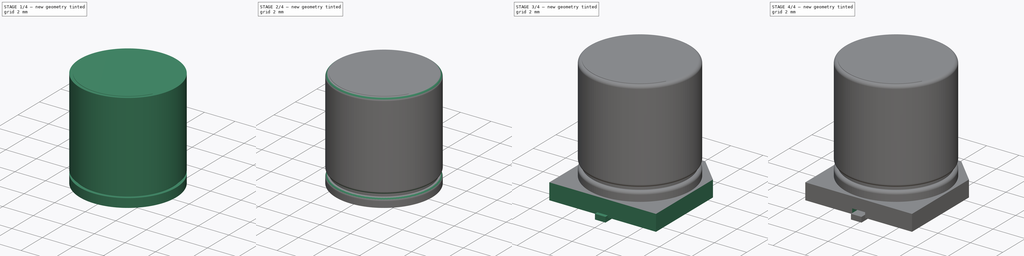
[diagram: build sequence overview — one tinted view per stage of 4, left to right]
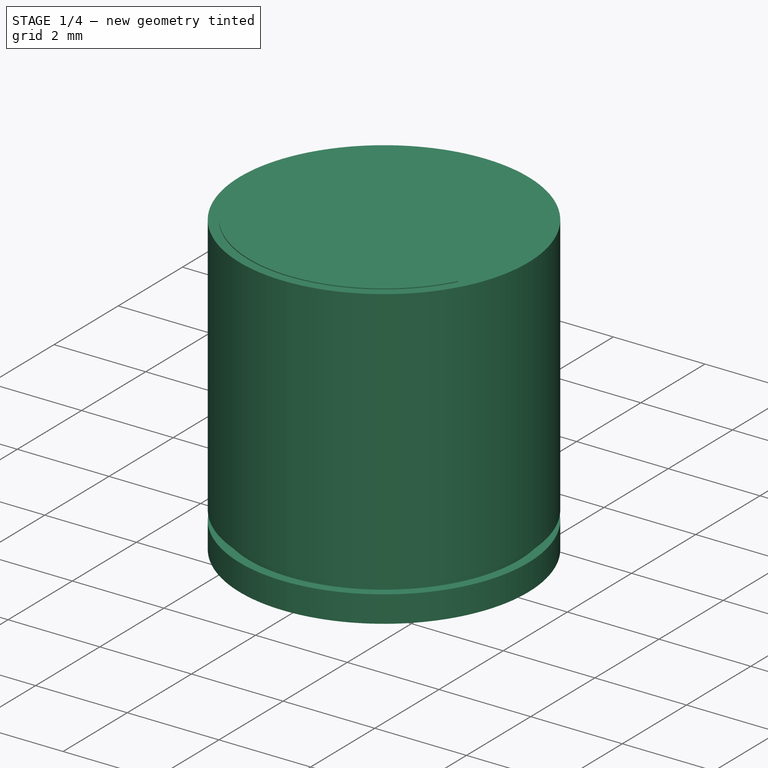
[diagram: stage 1 of 4 — iso view after this stage's code; geometry added in this stage tinted green]
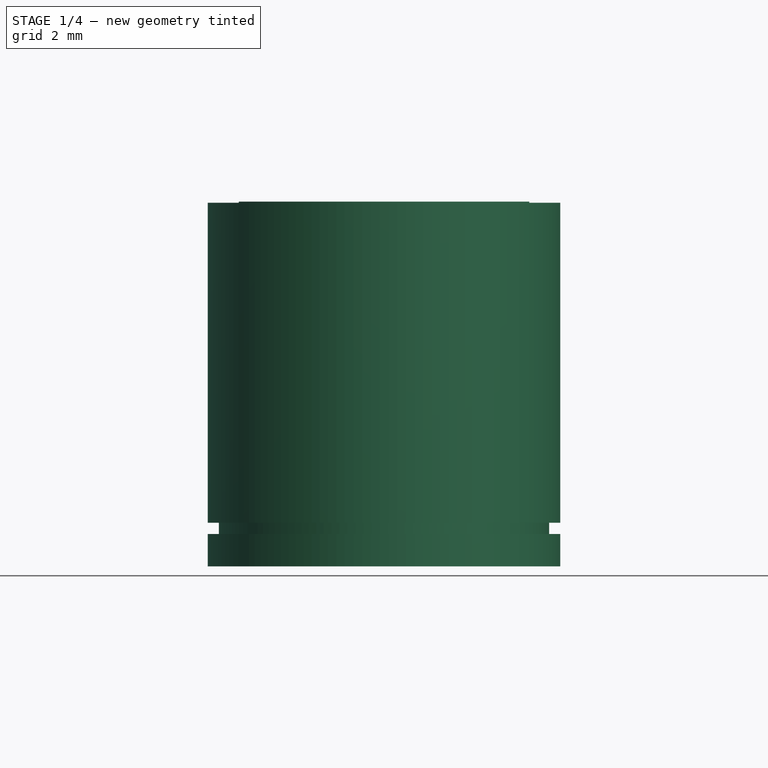
[diagram: stage 1 of 4 — front view after this stage's code; geometry added in this stage tinted green]
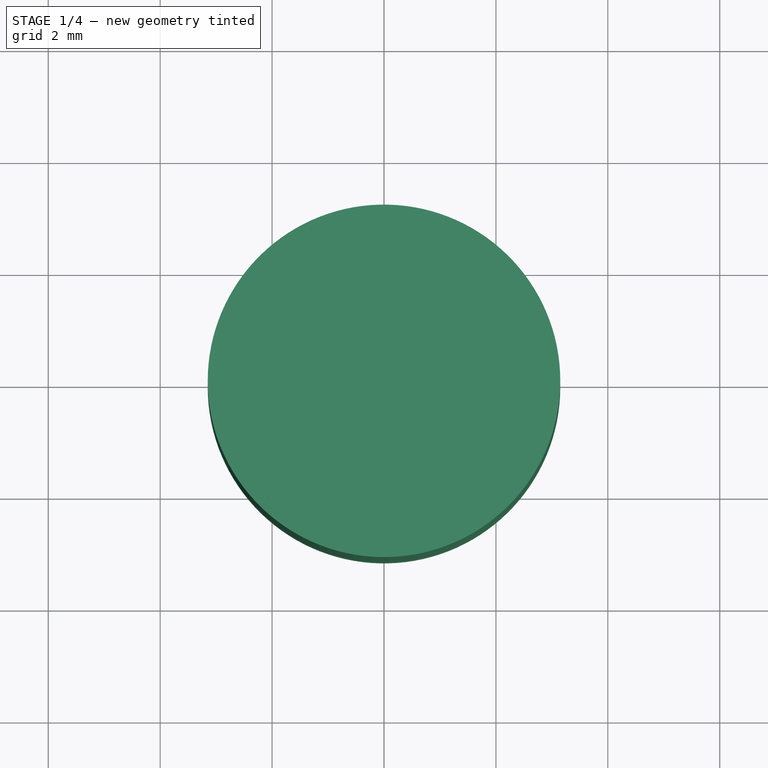
[diagram: stage 1 of 4 — top view after this stage's code; geometry added in this stage tinted green]
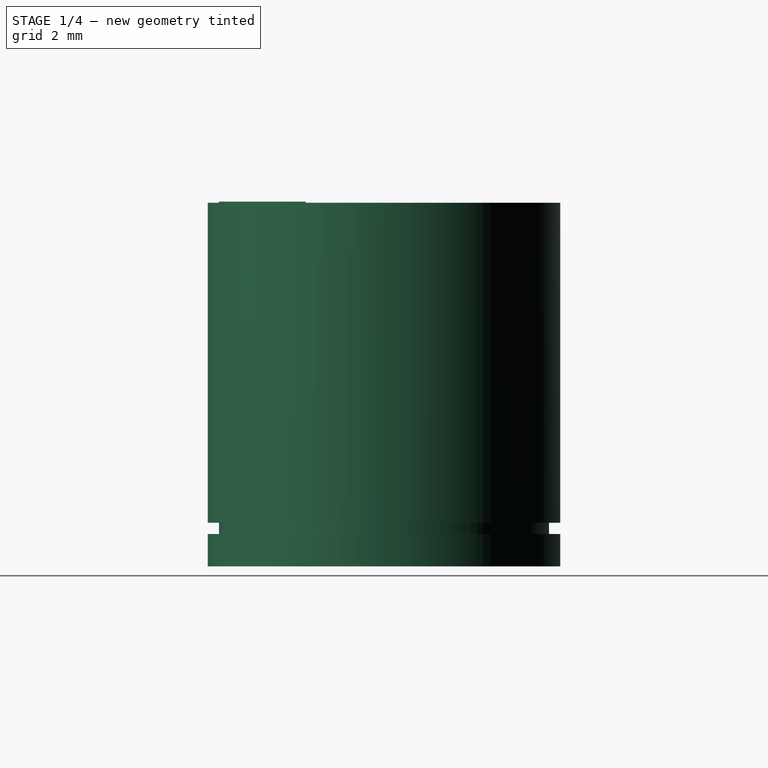
[diagram: stage 1 of 4 — right view after this stage's code; geometry added in this stage tinted green]
FCSTD DOCUMENT  (FreeCAD 0.14R3702 (Git))
Label: capsmd6x7
License: CC-BY 3.0
LicenseURL: http://creativecommons.org/licenses/by/3.0/
objects: Sketcher::SketchObject×5, Part::FeaturePython×4, PartDesign::Pad×3, Part::Fillet×2, PartDesign::Revolution×1, PartDesign::Pocket×1, App::DocumentObjectGroup×1, Part::Compound×1
note: 22 computed .brp shape members not serialized (recipe doc carries the construction recipe); baked Part::Feature solids carry a one-line shape summary decoded from their .brp

FEATURE [Sketcher::SketchObject] Sketch  label="capsmd4x3-sketch"
  Placement = pos=(0,0,0) rot=(1,0,0;1.5708rad)
  sketch-geometry (8):
    g0: LineSegment StartX=0 StartY=0 StartZ=0 EndX=-3.15 EndY=0 EndZ=0
    g1: LineSegment StartX=-3.15 StartY=0 StartZ=0 EndX=-3.15 EndY=0.58 EndZ=0
    g2: LineSegment StartX=-2.95 StartY=0.58 StartZ=0 EndX=-2.95 EndY=0.78 EndZ=0
    g3: LineSegment StartX=-3.15 StartY=0.78 StartZ=0 EndX=-3.15 EndY=6.5 EndZ=0
    g4: LineSegment StartX=-3.15 StartY=6.5 StartZ=0 EndX=0 EndY=6.5 EndZ=0
    g5: LineSegment StartX=0 StartY=6.5 StartZ=0 EndX=0 EndY=0 EndZ=0
    g6: LineSegment StartX=-3.15 StartY=0.78 StartZ=0 EndX=-2.95 EndY=0.78 EndZ=0
    g7: LineSegment StartX=-3.15 StartY=0.58 StartZ=0 EndX=-2.95 EndY=0.58 EndZ=0
  constraints (23):
    c: Coincident(g0,g1)
    c: Vertical(g1)
    c: Vertical(g2)
    c: Vertical(g3)
    c: Horizontal(g4)
    c: Coincident(g4,g5)
    c: Coincident(g5,g-1)
    c: Vertical(g5)
    c: Coincident(g0,g-1)
    c: Horizontal(g0)
    c: DistanceX(g0) = -3.15
    c: DistanceY(g5) = -6.5
    c: DistanceY(g2) = 0.2
    c: DistanceY(g0,g2) = 0.58
    c: Coincident(g3,g4)
    c: Horizontal(g6)
    c: Coincident(g6,g3)
    c: Coincident(g6,g2)
    c: PointOnObject(g3,g1)
    c: DistanceX(g6) = 0.2
    c: Horizontal(g7)
    c: Coincident(g7,g1)
    c: Coincident(g7,g2)
FEATURE [PartDesign::Revolution] Revolution  label="cylinder"
  Angle = 360
  Axis = (0,0,1)
  Base = (0,0,0)
  Placement = pos=(0,0,0) rot=(1,0,0;1.5708rad)
  ReferenceAxis = -> Sketch [V_Axis]
  Sketch = -> Sketch
FEATURE [PartDesign::Pad] Pad002  label="top-mark-sketch001"
  Length = 0.02
  Length2 = 100
  Placement = pos=(0,0,6.48) rot=(0,0,1;0rad)
  Sketch = -> Sketch004
  Type = 0
FEATURE [Part::FeaturePython] Clone003  label="top-mark"  # Draft clone (typed FeaturePython)
  Objects = -> [Pad002]
  Placement = pos=(0,0,6.5) rot=(0,0,1;0rad)
  Scale = (1,1,1)
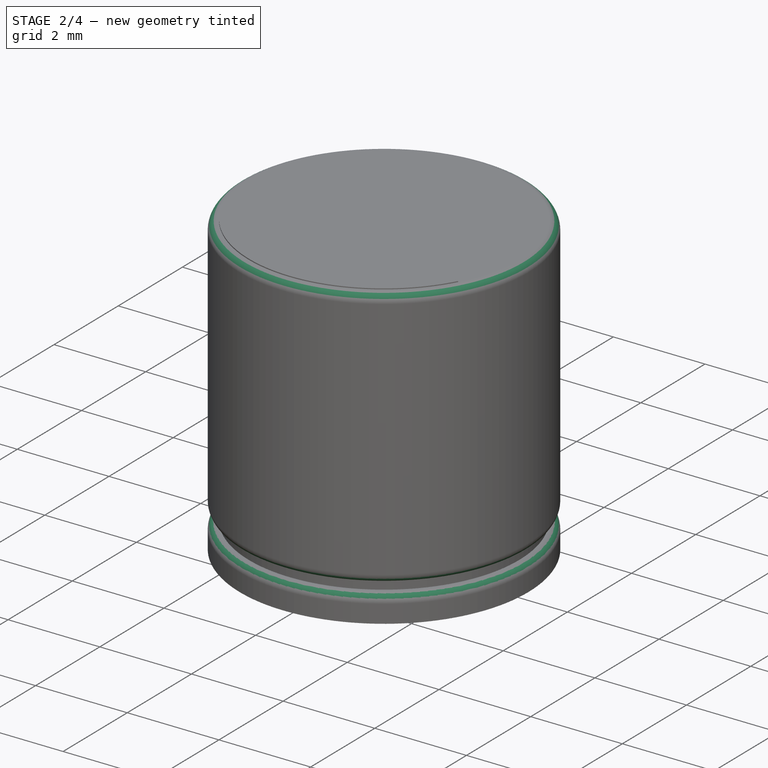
[diagram: stage 2 of 4 — iso view after this stage's code; geometry added in this stage tinted green]
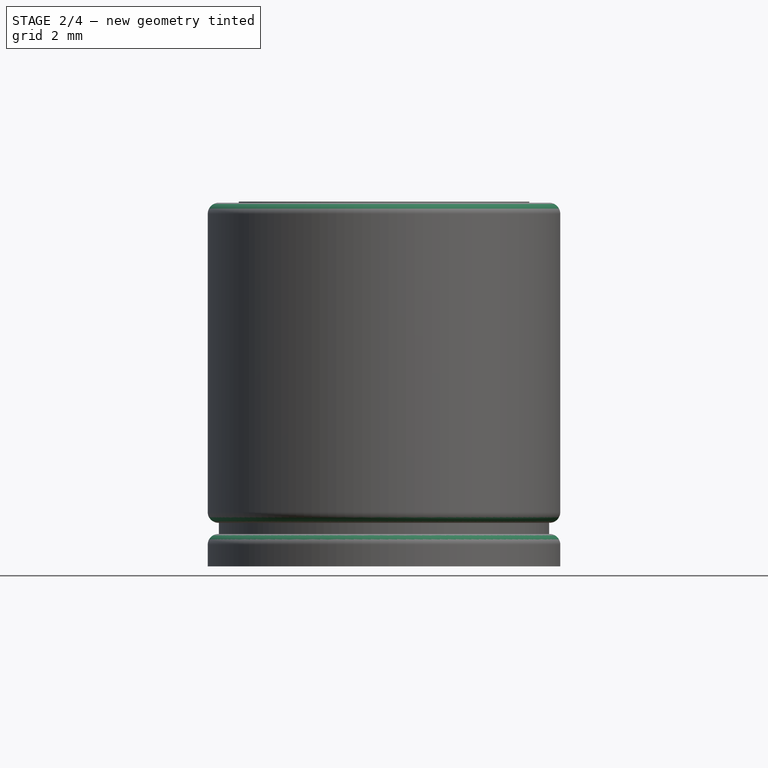
[diagram: stage 2 of 4 — front view after this stage's code; geometry added in this stage tinted green]
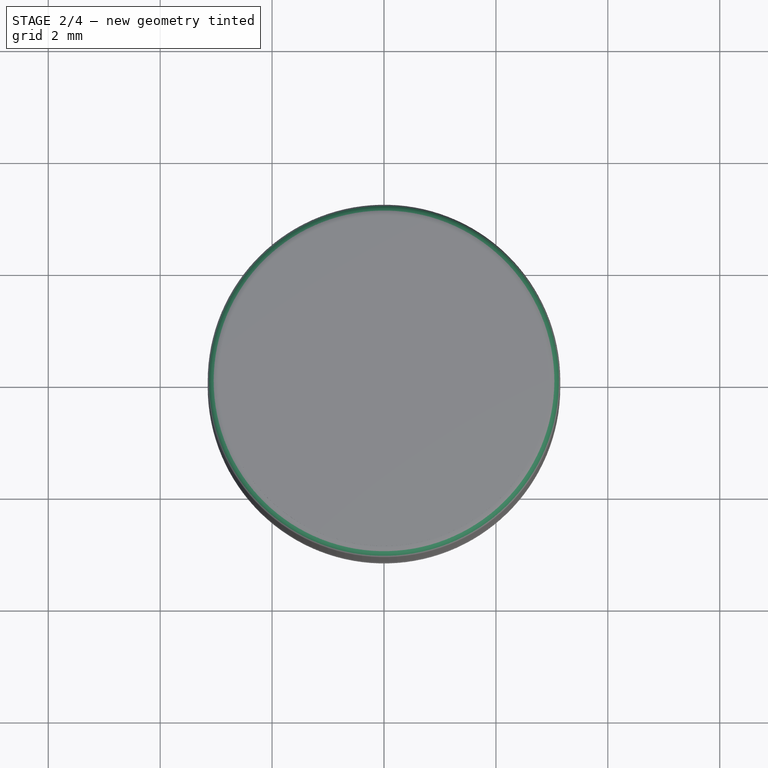
[diagram: stage 2 of 4 — top view after this stage's code; geometry added in this stage tinted green]
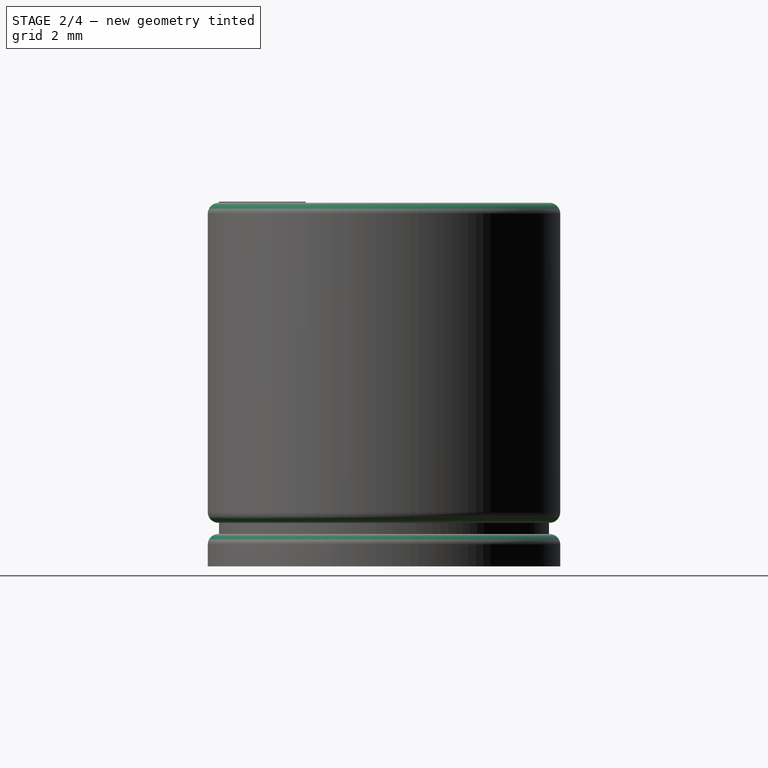
[diagram: stage 2 of 4 — right view after this stage's code; geometry added in this stage tinted green]
FEATURE [Part::Fillet] Fillet
  Base = -> Revolution
  Edges = 1 edges r=0.2: [Edge2]
FEATURE [Part::Fillet] Fillet001  label="main-body001"
  Base = -> Fillet
  Edges = 2 edges r=0.19: [Edge3,Edge9]
FEATURE [App::DocumentObjectGroup] Group  label="src"
  Group = -> [Fillet001,Pad,Pocket,Pad001,Pad002]
FEATURE [Part::FeaturePython] Clone002  label="cap-body"  # Draft clone (typed FeaturePython)
  Objects = -> [Fillet001]
  Scale = (1,1,1)
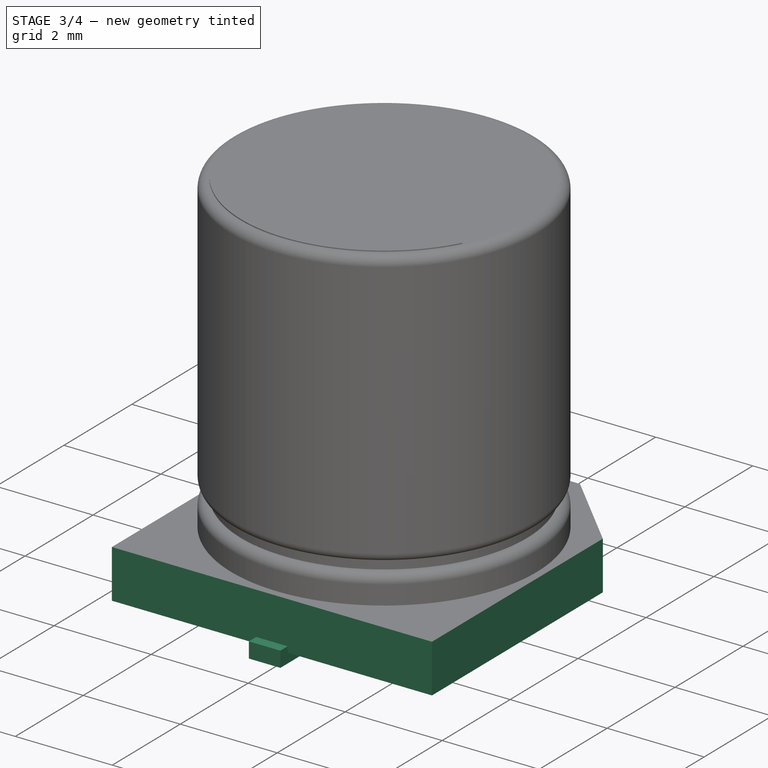
[diagram: stage 3 of 4 — iso view after this stage's code; geometry added in this stage tinted green]
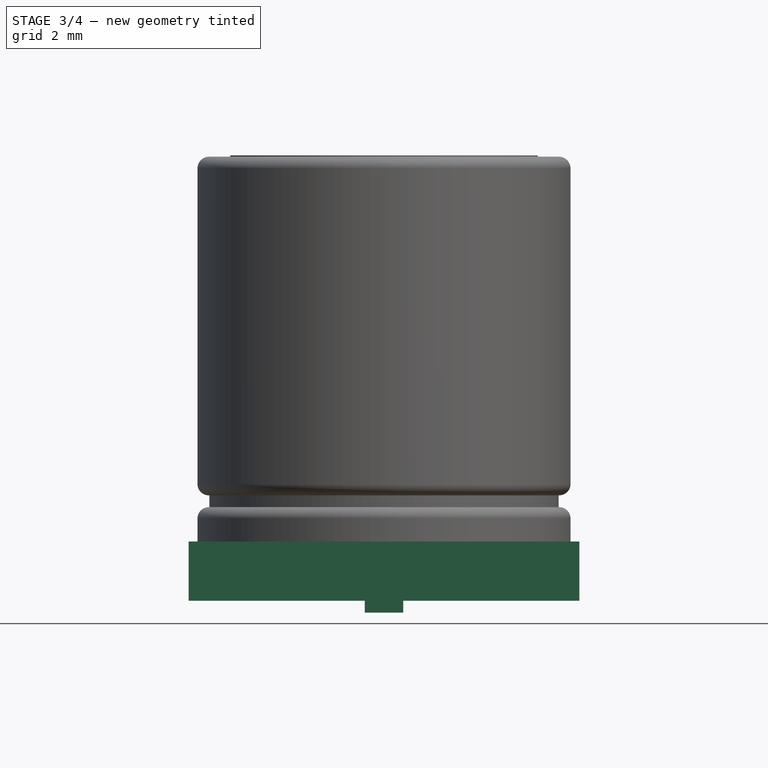
[diagram: stage 3 of 4 — front view after this stage's code; geometry added in this stage tinted green]
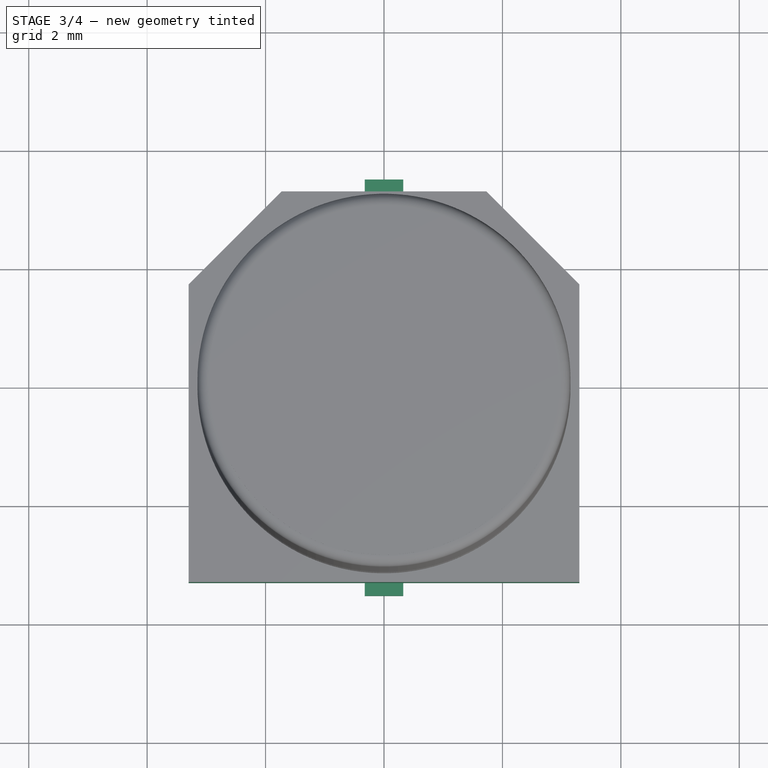
[diagram: stage 3 of 4 — top view after this stage's code; geometry added in this stage tinted green]
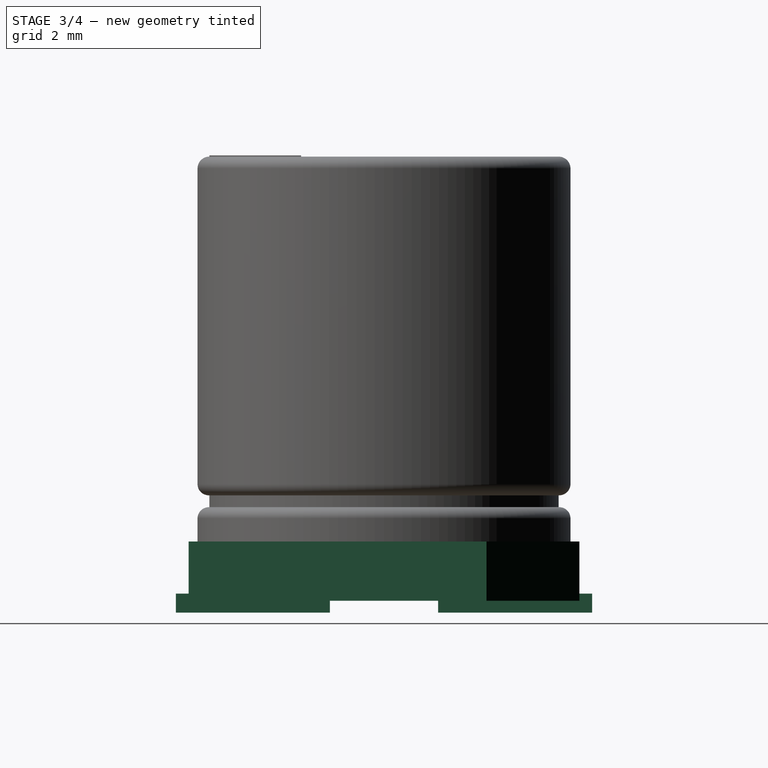
[diagram: stage 3 of 4 — right view after this stage's code; geometry added in this stage tinted green]
FEATURE [Sketcher::SketchObject] Sketch001  label="base-sketch"
  sketch-geometry (8):
    g0: LineSegment StartX=3.3 StartY=1.73 StartZ=0 EndX=3.3 EndY=-3.3 EndZ=0
    g1: LineSegment StartX=3.3 StartY=-3.3 StartZ=0 EndX=-3.3 EndY=-3.3 EndZ=0
    g2: LineSegment StartX=-3.3 StartY=-3.3 StartZ=0 EndX=-3.3 EndY=1.73 EndZ=0
    g3: LineSegment StartX=-3.3 StartY=1.73 StartZ=0 EndX=-1.73 EndY=3.3 EndZ=0
    g4: LineSegment StartX=-1.73 StartY=3.3 StartZ=0 EndX=1.73 EndY=3.3 EndZ=0
    g5: LineSegment StartX=1.73 StartY=3.3 StartZ=0 EndX=3.3 EndY=1.73 EndZ=0
    g6: LineSegment [constr] StartX=-3.3 StartY=1.73 StartZ=0 EndX=3.3 EndY=1.73 EndZ=0
    g7: LineSegment [constr] StartX=0 StartY=3.3 StartZ=0 EndX=0 EndY=-3.3 EndZ=0
  constraints (25):
    c: Coincident(g0,g1)
    c: Coincident(g1,g2)
    c: Horizontal(g1)
    c: Vertical(g0)
    c: Vertical(g2)
    c: Symmetric(g1,g0,g-2)
    c: Symmetric(g2,g0,g-2)
    c: Coincident(g3,g4)
    c: Coincident(g4,g5)
    c: Horizontal(g6)
    c: Coincident(g6,g2)
    c: Coincident(g6,g0)
    c: Coincident(g3,g2)
    c: Coincident(g5,g0)
    c: Angle(g6,g3) = 0.785398
    c: Horizontal(g4)
    c: Symmetric(g3,g4,g-2)
    c: DistanceX(g1) = -6.6
    c: Vertical(g7)
    c: PointOnObject(g7,g-2)
    c: PointOnObject(g7,g4)
    c: PointOnObject(g7,g1)
    c: Symmetric(g7,g7,g-1)
    c: DistanceY(g4,g0) = -6.6
    c: DistanceX(g4) = 3.46
FEATURE [PartDesign::Pad] Pad  label="base"
  Length = 1
  Length2 = 100
  Reversed = true
  Sketch = -> Sketch001
  Type = 0
FEATURE [Sketcher::SketchObject] Sketch003  label="contacts-sketch"
  Placement = pos=(0,0,-1.2) rot=(0,0,1;0rad)
  sketch-geometry (8):
    g0: LineSegment StartX=-0.325 StartY=3.515 StartZ=0 EndX=0.325 EndY=3.515 EndZ=0
    g1: LineSegment StartX=0.325 StartY=3.515 StartZ=0 EndX=0.325 EndY=0.915 EndZ=0
    g2: LineSegment StartX=0.325 StartY=0.915 StartZ=0 EndX=-0.325 EndY=0.915 EndZ=0
    g3: LineSegment StartX=-0.325 StartY=0.915 StartZ=0 EndX=-0.325 EndY=3.515 EndZ=0
    g4: LineSegment StartX=-0.325 StartY=-0.915 StartZ=0 EndX=0.325 EndY=-0.915 EndZ=0
    g5: LineSegment StartX=0.325 StartY=-0.915 StartZ=0 EndX=0.325 EndY=-3.515 EndZ=0
    g6: LineSegment StartX=0.325 StartY=-3.515 StartZ=0 EndX=-0.325 EndY=-3.515 EndZ=0
    g7: LineSegment StartX=-0.325 StartY=-3.515 StartZ=0 EndX=-0.325 EndY=-0.915 EndZ=0
  constraints (23):
    c: Coincident(g0,g1)
    c: Coincident(g1,g2)
    c: Coincident(g2,g3)
    c: Coincident(g3,g0)
    c: Horizontal(g0)
    c: Horizontal(g2)
    c: Vertical(g1)
    c: Vertical(g3)
    c: Symmetric(g0,g0,g-2)
    c: DistanceX(g0) = 0.65
    c: DistanceY(g1) = -2.6
    c: DistanceY(g-1,g1) = 0.915
    c: Coincident(g4,g5)
    c: Coincident(g5,g6)
    c: Coincident(g6,g7)
    c: Coincident(g7,g4)
    c: Horizontal(g4)
    c: Horizontal(g6)
    c: Vertical(g5)
    c: Vertical(g7)
    c: Symmetric(g4,g4,g-2)
    c: Symmetric(g1,g4,g-1)
    c: Symmetric(g5,g0,g-1)
FEATURE [PartDesign::Pad] Pad001  label="contacts"
  Length = 0.32
  Length2 = 100
  Placement = pos=(0,0,-1.2) rot=(0,0,1;0rad)
  Sketch = -> Sketch003
  Type = 0
FEATURE [Part::FeaturePython] Clone001  label="cap-contacts"  # Draft clone (typed FeaturePython)
  Objects = -> [Pad001]
  Placement = pos=(0,0,-1.2) rot=(0,0,1;0rad)
  Scale = (1,1,1)
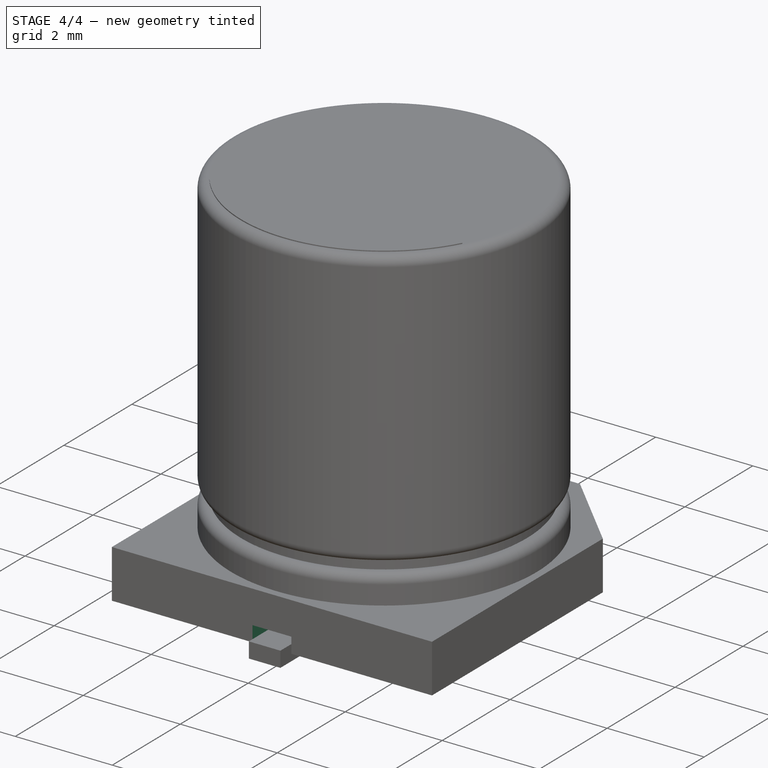
[diagram: stage 4 of 4 — iso view after this stage's code; geometry added in this stage tinted green]
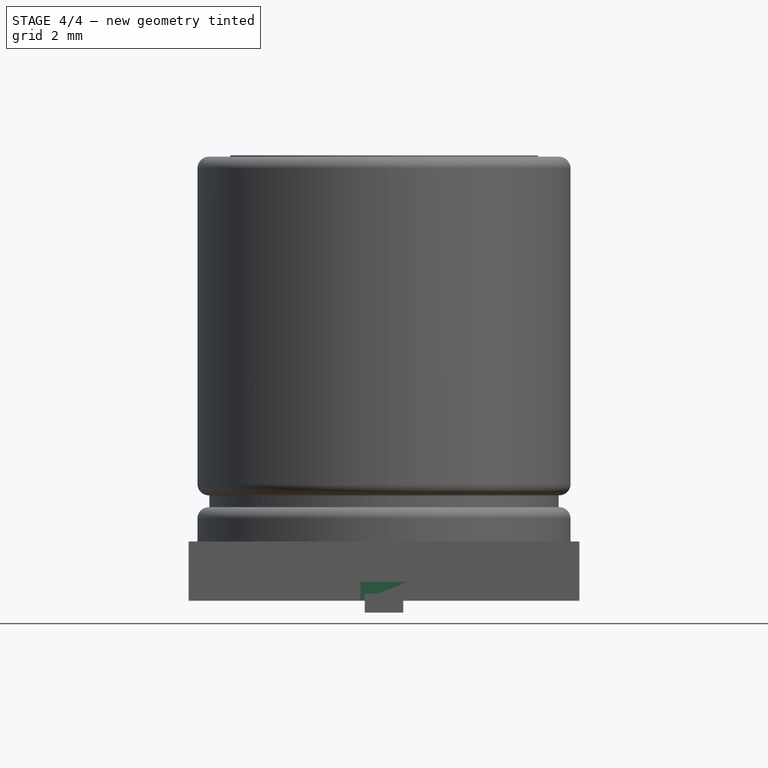
[diagram: stage 4 of 4 — front view after this stage's code; geometry added in this stage tinted green]
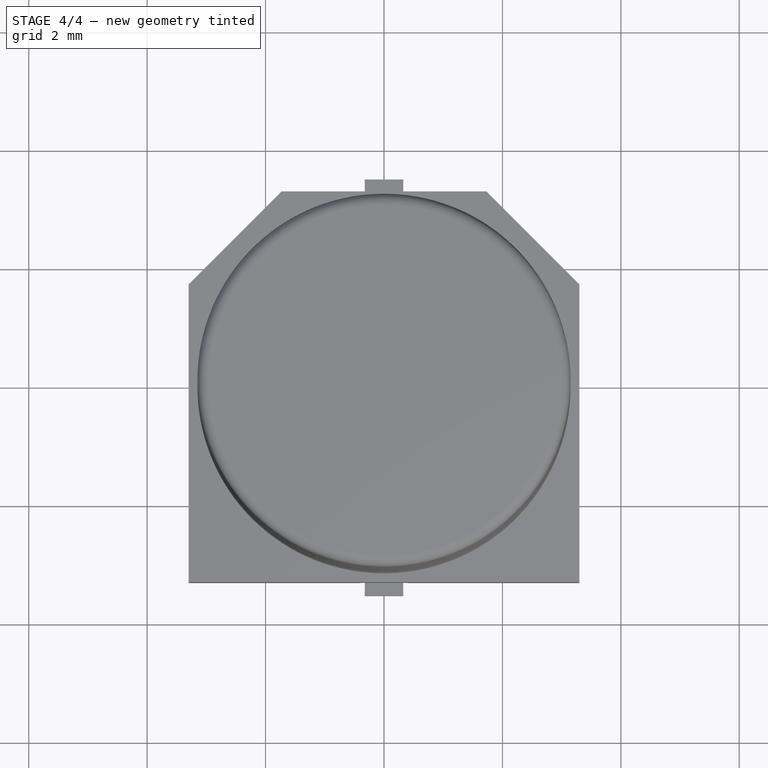
[diagram: stage 4 of 4 — top view after this stage's code; geometry added in this stage tinted green]
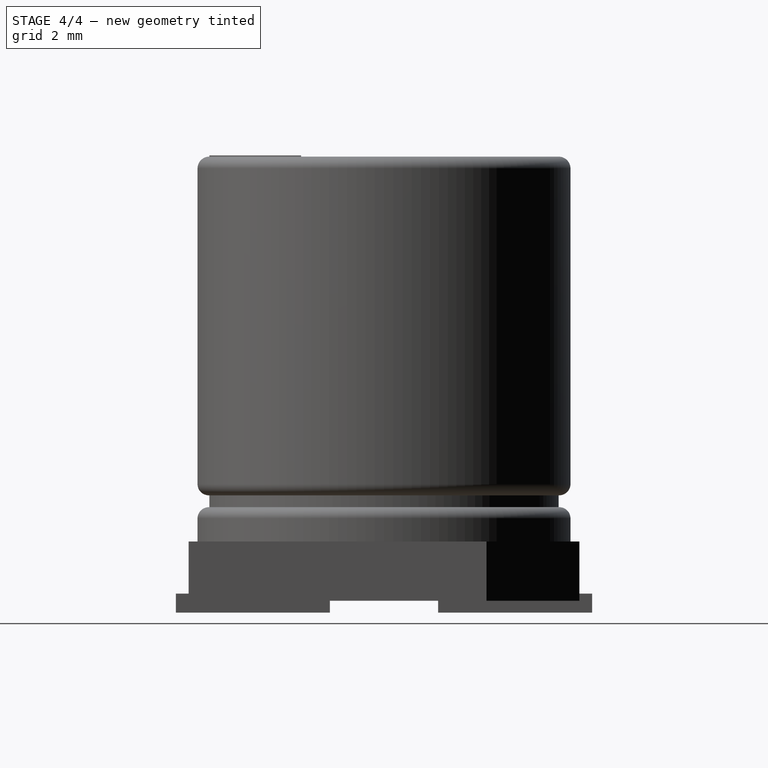
[diagram: stage 4 of 4 — right view after this stage's code; geometry added in this stage tinted green]
FEATURE [Sketcher::SketchObject] Sketch002  label="base-cutout-1-sketch"
  Placement = pos=(0,0,-1) rot=(1,0,0;3.14159rad)
  Support = -> Pad [Face8]
  sketch-geometry (8):
    g0: LineSegment StartX=-0.4 StartY=3.415 StartZ=0 EndX=0.4 EndY=3.415 EndZ=0
    g1: LineSegment StartX=0.4 StartY=3.415 StartZ=0 EndX=0.4 EndY=0.915 EndZ=0
    g2: LineSegment StartX=0.4 StartY=0.915 StartZ=0 EndX=-0.4 EndY=0.915 EndZ=0
    g3: LineSegment StartX=-0.4 StartY=0.915 StartZ=0 EndX=-0.4 EndY=3.415 EndZ=0
    g4: LineSegment StartX=-0.4 StartY=-0.915 StartZ=0 EndX=0.4 EndY=-0.915 EndZ=0
    g5: LineSegment StartX=0.4 StartY=-0.915 StartZ=0 EndX=0.4 EndY=-3.415 EndZ=0
    g6: LineSegment StartX=0.4 StartY=-3.415 StartZ=0 EndX=-0.4 EndY=-3.415 EndZ=0
    g7: LineSegment StartX=-0.4 StartY=-3.415 StartZ=0 EndX=-0.4 EndY=-0.915 EndZ=0
  constraints (23):
    c: Coincident(g0,g1)
    c: Coincident(g1,g2)
    c: Coincident(g2,g3)
    c: Coincident(g3,g0)
    c: Horizontal(g0)
    c: Horizontal(g2)
    c: Vertical(g1)
    c: Vertical(g3)
    c: DistanceX(g0) = 0.8
    c: Symmetric(g0,g0,g-2)
    c: DistanceY(g1) = -2.5
    c: DistanceY(g-1,g1) = 0.915
    c: Coincident(g4,g5)
    c: Coincident(g5,g6)
    c: Coincident(g6,g7)
    c: Coincident(g7,g4)
    c: Horizontal(g4)
    c: Horizontal(g6)
    c: Vertical(g5)
    c: Vertical(g7)
    c: Symmetric(g4,g4,g-2)
    c: Symmetric(g2,g4,g-1)
    c: Symmetric(g5,g0,g-1)
FEATURE [PartDesign::Pocket] Pocket  label="base-cutout-1"
  Length = 0.32
  Sketch = -> Sketch002
  Type = 0
FEATURE [Sketcher::SketchObject] Sketch004  label="top-mark-sketch"
  Placement = pos=(0,0,6.48) rot=(0,0,1;0rad)
  sketch-geometry (2):
    g0: LineSegment StartX=-2.59663 StartY=-1.4 StartZ=0 EndX=2.59663 EndY=-1.4 EndZ=0
    g1: ArcOfCircle CenterX=0 CenterY=0 CenterZ=0 NormalX=0 NormalY=0 NormalZ=1 Radius=2.95 StartAngle=3.63608 EndAngle=5.7887
  constraints (6):
    c: Horizontal(g0)
    c: Coincident(g1,g-1)
    c: Coincident(g0,g1)
    c: Coincident(g1,g0)
    c: Radius(g1) = 2.95
    c: DistanceY(g-1,g0) = -1.4
FEATURE [Part::FeaturePython] Clone  label="cap-base"  # Draft clone (typed FeaturePython)
  Objects = -> [Pocket]
  Scale = (1,1,1)
FEATURE [Part::Compound] Compound  label="capsmd-6x7"
  Links = -> [Clone,Clone002,Clone001,Clone003]
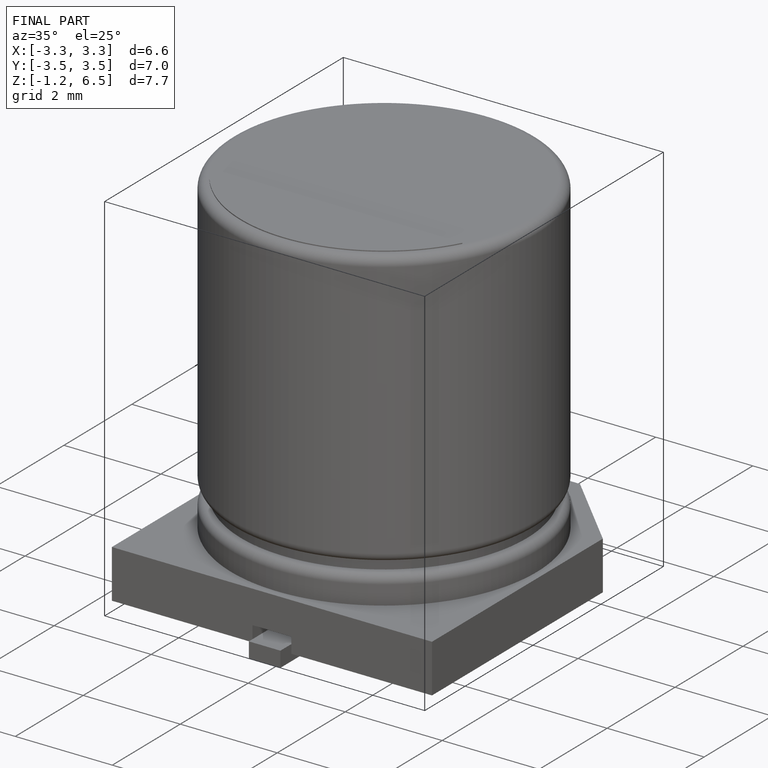
[diagram: finished part — iso view with bounding-box wireframe]
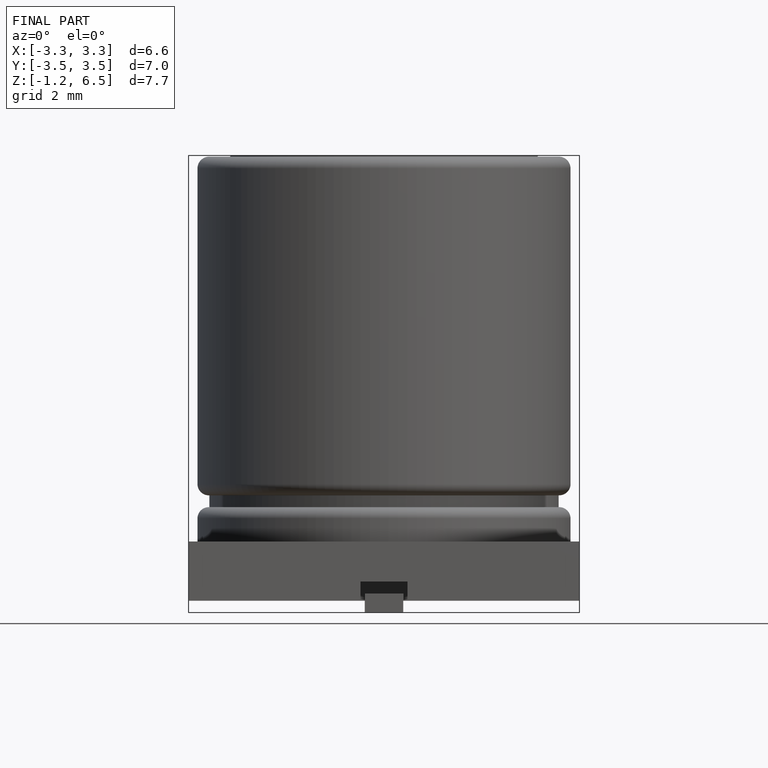
[diagram: finished part — front view with bounding-box wireframe]
